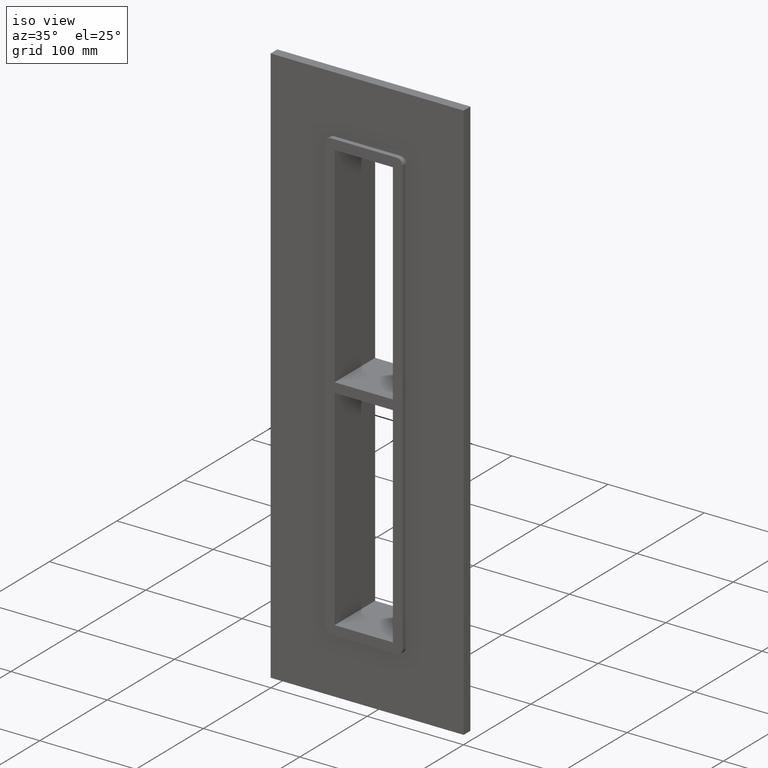
[diagram: clean part render]
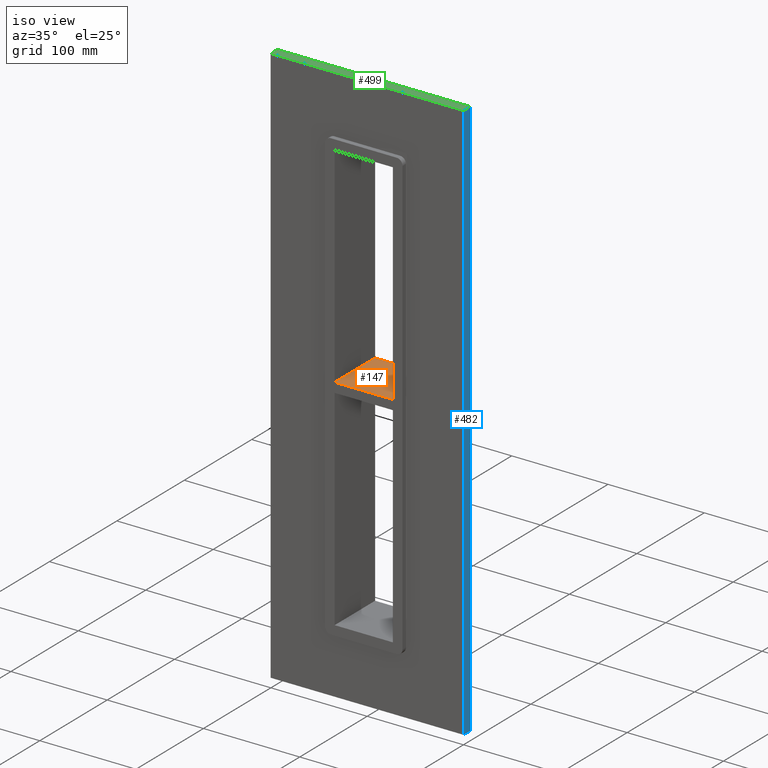
[diagram: same view with three faces highlighted in distinct colors, each labeled with its STEP entity id]
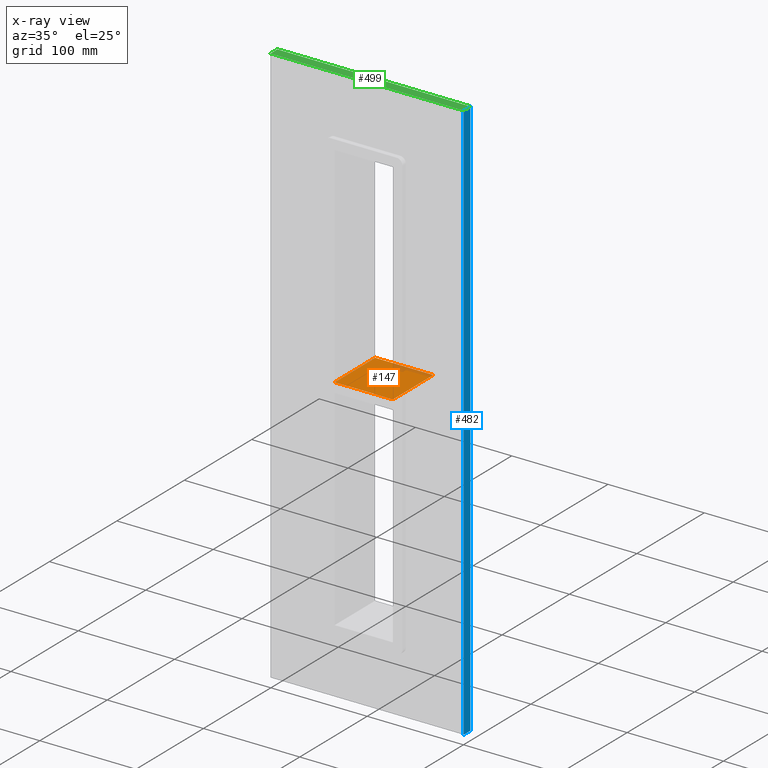
[diagram: x-ray of the same camera — body ghosted, the three highlighted faces saturated]
A machine part, iso view with three faces highlighted in distinct colors.
The next image is the same camera in x-ray (body ghosted, the three faces saturated) — at least one of them is partly hidden behind the body in this view.
Their STEP definitions:

[orange] entity #147 — the highlighted planar face has unit normal (0, 0, 1).
#108=CARTESIAN_POINT('',(-30.250000000000004,-5.0,5.000000000000036));
#109=DIRECTION('',(0.0,0.0,1.0));
#110=DIRECTION('',(1.0,0.0,0.0));
#111=AXIS2_PLACEMENT_3D('',#108,#109,#110);
#112=PLANE('',#111);
#113=CARTESIAN_POINT('',(-30.250000000000004,-5.0,5.000000000000036));
#114=VERTEX_POINT('',#113);
#115=CARTESIAN_POINT('',(30.250000000000803,-5.0,5.0));
#116=VERTEX_POINT('',#115);
#117=CARTESIAN_POINT('',(-30.250000000000004,-5.0,5.000000000000036));
#118=DIRECTION('',(1.0,0.0,0.0));
#119=VECTOR('',#118,60.50000000000081);
#120=LINE('',#117,#119);
#121=EDGE_CURVE('',#114,#116,#120,.T.);
#122=ORIENTED_EDGE('',*,*,#121,.T.);
#123=CARTESIAN_POINT('',(30.250000000000803,55.0,5.0));
#124=VERTEX_POINT('',#123);
#125=CARTESIAN_POINT('',(30.249999999999986,55.0,5.0));
#126=DIRECTION('',(0.0,-1.0,0.0));
#127=VECTOR('',#126,60.0);
#128=LINE('',#125,#127);
#129=EDGE_CURVE('',#124,#116,#128,.T.);
#130=ORIENTED_EDGE('',*,*,#129,.F.);
#131=CARTESIAN_POINT('',(-30.250000000000004,55.0,5.000000000000036));
#132=VERTEX_POINT('',#131);
#133=CARTESIAN_POINT('',(-30.250000000000004,55.0,5.000000000000036));
#134=DIRECTION('',(1.0,0.0,0.0));
#135=VECTOR('',#134,60.50000000000081);
#136=LINE('',#133,#135);
#137=EDGE_CURVE('',#132,#124,#136,.T.);
#138=ORIENTED_EDGE('',*,*,#137,.F.);
#139=CARTESIAN_POINT('',(-30.250000000000004,-5.0,5.000000000000036));
#140=DIRECTION('',(0.0,1.0,0.0));
#141=VECTOR('',#140,60.0);
#142=LINE('',#139,#141);
#143=EDGE_CURVE('',#114,#132,#142,.T.);
#144=ORIENTED_EDGE('',*,*,#143,.F.);
#145=EDGE_LOOP('',(#122,#130,#138,#144));
#146=FACE_OUTER_BOUND('',#145,.T.);
#147=ADVANCED_FACE('',(#146),#112,.T.);

[blue] entity #482 — the highlighted planar face has unit normal (1, 0, 0).
#246=CARTESIAN_POINT('',(100.24999999999999,10.0,-293.00000000000006));
#247=VERTEX_POINT('',#246);
#264=CARTESIAN_POINT('',(100.24999999999999,10.0,293.00000000000006));
#265=VERTEX_POINT('',#264);
#272=CARTESIAN_POINT('',(100.24999999999999,10.0,293.0));
#273=DIRECTION('',(0.0,0.0,-1.0));
#274=VECTOR('',#273,586.00000000000011);
#275=LINE('',#272,#274);
#276=EDGE_CURVE('',#265,#247,#275,.T.);
#356=CARTESIAN_POINT('',(100.24999999999999,0.0,-293.00000000000006));
#357=VERTEX_POINT('',#356);
#366=CARTESIAN_POINT('',(100.24999999999999,0.0,293.0));
#367=VERTEX_POINT('',#366);
#368=CARTESIAN_POINT('',(100.24999999999999,0.0,293.0));
#369=DIRECTION('',(0.0,0.0,-1.0));
#370=VECTOR('',#369,586.00000000000011);
#371=LINE('',#368,#370);
#372=EDGE_CURVE('',#367,#357,#371,.T.);
#461=CARTESIAN_POINT('',(100.24999999999999,0.0,293.0));
#462=DIRECTION('',(1.0,0.0,0.0));
#463=DIRECTION('',(0.0,0.0,-1.0));
#464=AXIS2_PLACEMENT_3D('',#461,#462,#463);
#465=PLANE('',#464);
#466=ORIENTED_EDGE('',*,*,#372,.T.);
#467=CARTESIAN_POINT('',(100.24999999999999,0.0,-293.00000000000006));
#468=DIRECTION('',(0.0,1.0,0.0));
#469=VECTOR('',#468,10.0);
#470=LINE('',#467,#469);
#471=EDGE_CURVE('',#357,#247,#470,.T.);
#472=ORIENTED_EDGE('',*,*,#471,.T.);
#473=ORIENTED_EDGE('',*,*,#276,.F.);
#474=CARTESIAN_POINT('',(100.24999999999999,0.0,293.0));
#475=DIRECTION('',(0.0,1.0,0.0));
#476=VECTOR('',#475,10.0);
#477=LINE('',#474,#476);
#478=EDGE_CURVE('',#367,#265,#477,.T.);
#479=ORIENTED_EDGE('',*,*,#478,.F.);
#480=EDGE_LOOP('',(#466,#472,#473,#479));
#481=FACE_OUTER_BOUND('',#480,.T.);
#482=ADVANCED_FACE('',(#481),#465,.T.);

[green] entity #499 — the highlighted planar face has unit normal (0, 0, 1).
#256=CARTESIAN_POINT('',(-100.24999999999999,10.0,293.00000000000006));
#257=VERTEX_POINT('',#256);
#264=CARTESIAN_POINT('',(100.24999999999999,10.0,293.00000000000006));
#265=VERTEX_POINT('',#264);
#266=CARTESIAN_POINT('',(-100.24999999999997,10.0,293.0));
#267=DIRECTION('',(1.0,0.0,0.0));
#268=VECTOR('',#267,200.49999999999997);
#269=LINE('',#266,#268);
#270=EDGE_CURVE('',#257,#265,#269,.T.);
#366=CARTESIAN_POINT('',(100.24999999999999,0.0,293.0));
#367=VERTEX_POINT('',#366);
#374=CARTESIAN_POINT('',(-100.24999999999997,0.0,293.0));
#375=VERTEX_POINT('',#374);
#376=CARTESIAN_POINT('',(-100.24999999999997,0.0,293.0));
#377=DIRECTION('',(1.0,0.0,0.0));
#378=VECTOR('',#377,200.49999999999997);
#379=LINE('',#376,#378);
#380=EDGE_CURVE('',#375,#367,#379,.T.);
#474=CARTESIAN_POINT('',(100.24999999999999,0.0,293.0));
#475=DIRECTION('',(0.0,1.0,0.0));
#476=VECTOR('',#475,10.0);
#477=LINE('',#474,#476);
#478=EDGE_CURVE('',#367,#265,#477,.T.);
#483=CARTESIAN_POINT('',(-100.24999999999997,0.0,293.0));
#484=DIRECTION('',(0.0,0.0,1.0));
#485=DIRECTION('',(1.0,0.0,0.0));
#486=AXIS2_PLACEMENT_3D('',#483,#484,#485);
#487=PLANE('',#486);
#488=ORIENTED_EDGE('',*,*,#380,.T.);
#489=ORIENTED_EDGE('',*,*,#478,.T.);
#490=ORIENTED_EDGE('',*,*,#270,.F.);
#491=CARTESIAN_POINT('',(-100.24999999999997,0.0,293.0));
#492=DIRECTION('',(0.0,1.0,0.0));
#493=VECTOR('',#492,10.0);
#494=LINE('',#491,#493);
#495=EDGE_CURVE('',#375,#257,#494,.T.);
#496=ORIENTED_EDGE('',*,*,#495,.F.);
#497=EDGE_LOOP('',(#488,#489,#490,#496));
#498=FACE_OUTER_BOUND('',#497,.T.);
#499=ADVANCED_FACE('',(#498),#487,.T.);